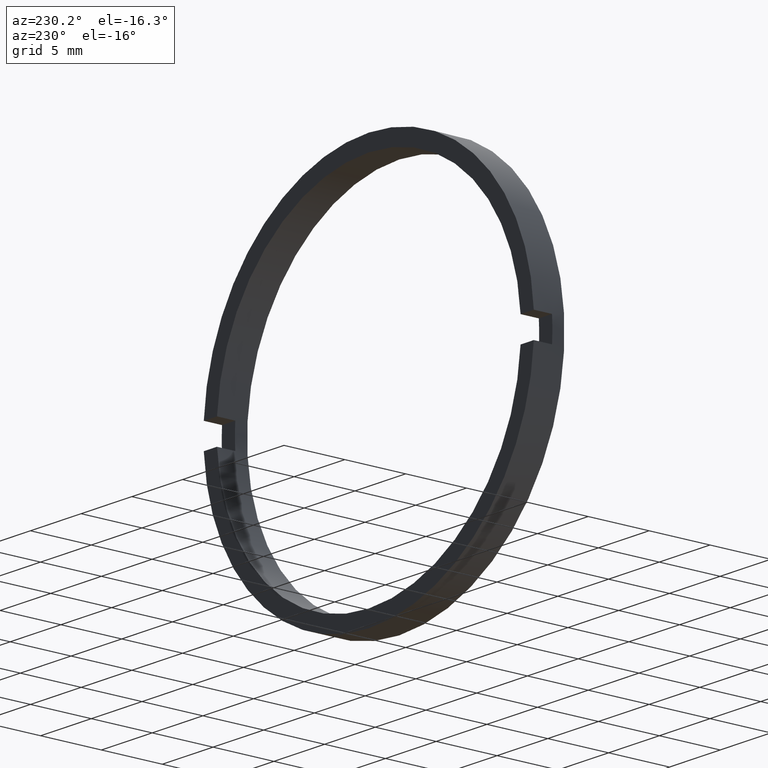
[diagram: clean part render]
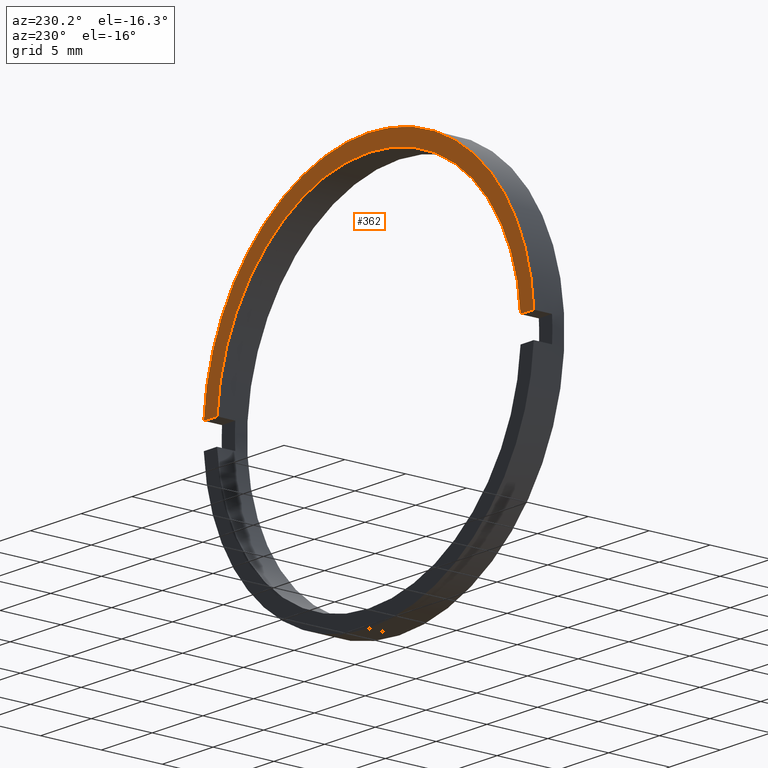
[diagram: same view with one face highlighted and labeled with its STEP entity id]
A machine part, auxiliary view. The second image highlights one B-rep face of the part: STEP entity #362.
In plain terms, the highlighted planar face has unit normal (0, -1, 0).
Its self-contained STEP definition (entity closure, byte-faithful):
#5 = DIRECTION ( 'NONE',  ( -0.0000000000000000000, 1.000000000000000000, -0.0000000000000000000 ) ) ;
#10 = CIRCLE ( 'NONE', #217, 15.00000000000000700 ) ;
#14 = CIRCLE ( 'NONE', #246, 16.30000000000000800 ) ;
#20 = DIRECTION ( 'NONE',  ( 1.000000000000000000, 0.0000000000000000000, 0.0000000000000000000 ) ) ;
#43 = EDGE_CURVE ( 'NONE', #451, #327, #82, .T. ) ;
#61 = DIRECTION ( 'NONE',  ( 0.0000000000000000000, -0.0000000000000000000, -1.000000000000000000 ) ) ;
#82 = CIRCLE ( 'NONE', #239, 15.00000000000000700 ) ;
#99 = CARTESIAN_POINT ( 'NONE',  ( 0.0000000000000000000, -1.964249787179434000, 0.0000000000000000000 ) ) ;
#104 = EDGE_CURVE ( 'NONE', #327, #249, #10, .T. ) ;
#109 = EDGE_LOOP ( 'NONE', ( #199, #203, #436, #117, #351, #482 ) ) ;
#113 = AXIS2_PLACEMENT_3D ( 'NONE', #309, #493, #61 ) ;
#117 = ORIENTED_EDGE ( 'NONE', *, *, #104, .F. ) ;
#118 = CARTESIAN_POINT ( 'NONE',  ( 0.0000000000000000000, -1.964249787179434000, 0.0000000000000000000 ) ) ;
#129 = CARTESIAN_POINT ( 'NONE',  ( 14.96662954709577100, -1.964249787179434000, 0.9999999999999995600 ) ) ;
#148 = CARTESIAN_POINT ( 'NONE',  ( -26.85254027261461800, -1.964249787179430900, 1.000000000000000000 ) ) ;
#176 = EDGE_CURVE ( 'NONE', #201, #494, #411, .T. ) ;
#182 = CARTESIAN_POINT ( 'NONE',  ( 16.26929623554749300, -1.964249787179430900, 1.000000000000000000 ) ) ;
#183 = LINE ( 'NONE', #148, #248 ) ;
#196 = DIRECTION ( 'NONE',  ( 1.000000000000000000, 0.0000000000000000000, 0.0000000000000000000 ) ) ;
#199 = ORIENTED_EDGE ( 'NONE', *, *, #254, .T. ) ;
#201 = VERTEX_POINT ( 'NONE', #218 ) ;
#203 = ORIENTED_EDGE ( 'NONE', *, *, #176, .T. ) ;
#205 = EDGE_CURVE ( 'NONE', #249, #494, #398, .T. ) ;
#208 = DIRECTION ( 'NONE',  ( -0.0000000000000000000, 1.000000000000000000, -0.0000000000000000000 ) ) ;
#212 = CARTESIAN_POINT ( 'NONE',  ( -16.26929623554751100, -1.964249787179430900, 1.000000000000000000 ) ) ;
#213 = CARTESIAN_POINT ( 'NONE',  ( 0.0000000000000000000, -1.964249787179434000, 0.0000000000000000000 ) ) ;
#217 = AXIS2_PLACEMENT_3D ( 'NONE', #473, #5, #288 ) ;
#218 = CARTESIAN_POINT ( 'NONE',  ( 0.0000000000000000000, -1.964249787179434000, 16.30000000000000800 ) ) ;
#228 = VERTEX_POINT ( 'NONE', #212 ) ;
#239 = AXIS2_PLACEMENT_3D ( 'NONE', #118, #208, #322 ) ;
#246 = AXIS2_PLACEMENT_3D ( 'NONE', #213, #333, #329 ) ;
#248 = VECTOR ( 'NONE', #196, 1000.000000000000000 ) ;
#249 = VERTEX_POINT ( 'NONE', #129 ) ;
#252 = DIRECTION ( 'NONE',  ( 0.0000000000000000000, 0.0000000000000000000, 1.000000000000000000 ) ) ;
#254 = EDGE_CURVE ( 'NONE', #228, #201, #14, .T. ) ;
#288 = DIRECTION ( 'NONE',  ( 0.0000000000000000000, 0.0000000000000000000, 1.000000000000000000 ) ) ;
#300 = DIRECTION ( 'NONE',  ( -0.0000000000000000000, 1.000000000000000000, -0.0000000000000000000 ) ) ;
#309 = CARTESIAN_POINT ( 'NONE',  ( 15.00000000000000700, -1.964249787179430900, 0.0000000000000000000 ) ) ;
#322 = DIRECTION ( 'NONE',  ( 0.0000000000000000000, 0.0000000000000000000, 1.000000000000000000 ) ) ;
#327 = VERTEX_POINT ( 'NONE', #379 ) ;
#329 = DIRECTION ( 'NONE',  ( 0.0000000000000000000, 0.0000000000000000000, 1.000000000000000000 ) ) ;
#333 = DIRECTION ( 'NONE',  ( -0.0000000000000000000, 1.000000000000000000, -0.0000000000000000000 ) ) ;
#351 = ORIENTED_EDGE ( 'NONE', *, *, #43, .F. ) ;
#354 = FACE_OUTER_BOUND ( 'NONE', #109, .T. ) ;
#362 = ADVANCED_FACE ( 'NONE', ( #354 ), #381, .F. ) ;
#379 = CARTESIAN_POINT ( 'NONE',  ( 0.0000000000000000000, -1.964249787179434000, 15.00000000000000700 ) ) ;
#381 = PLANE ( 'NONE',  #113 ) ;
#386 = AXIS2_PLACEMENT_3D ( 'NONE', #99, #300, #252 ) ;
#398 = LINE ( 'NONE', #409, #440 ) ;
#409 = CARTESIAN_POINT ( 'NONE',  ( -26.85254027261461800, -1.964249787179430900, 1.000000000000000000 ) ) ;
#411 = CIRCLE ( 'NONE', #386, 16.30000000000000800 ) ;
#436 = ORIENTED_EDGE ( 'NONE', *, *, #205, .F. ) ;
#439 = EDGE_CURVE ( 'NONE', #228, #451, #183, .T. ) ;
#440 = VECTOR ( 'NONE', #20, 1000.000000000000000 ) ;
#451 = VERTEX_POINT ( 'NONE', #458 ) ;
#458 = CARTESIAN_POINT ( 'NONE',  ( -14.96662954709577100, -1.964249787179434000, 0.9999999999999995600 ) ) ;
#473 = CARTESIAN_POINT ( 'NONE',  ( 0.0000000000000000000, -1.964249787179434000, 0.0000000000000000000 ) ) ;
#482 = ORIENTED_EDGE ( 'NONE', *, *, #439, .F. ) ;
#493 = DIRECTION ( 'NONE',  ( 0.0000000000000000000, -1.000000000000000000, 0.0000000000000000000 ) ) ;
#494 = VERTEX_POINT ( 'NONE', #182 ) ;